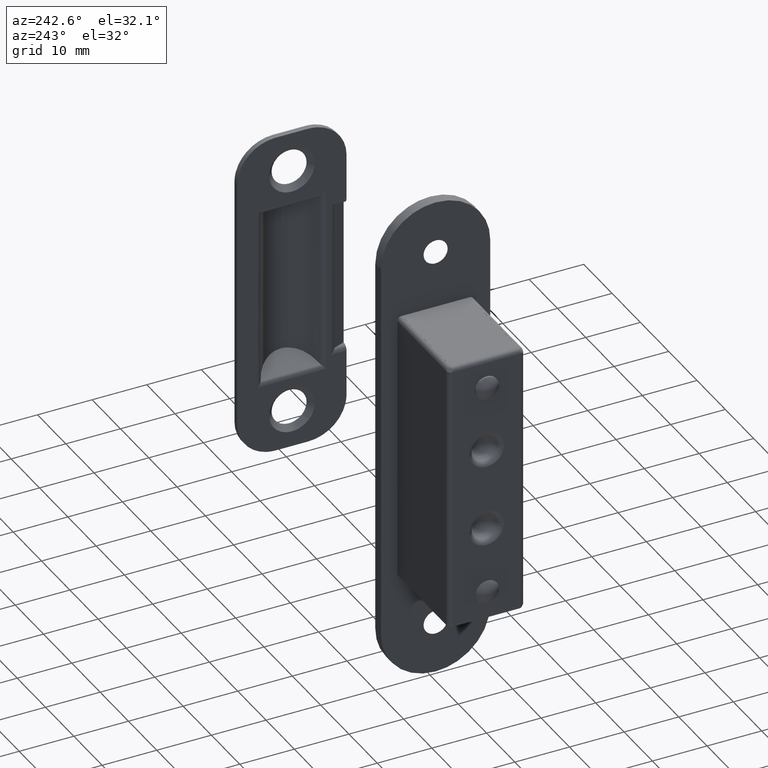
[diagram: clean part render]
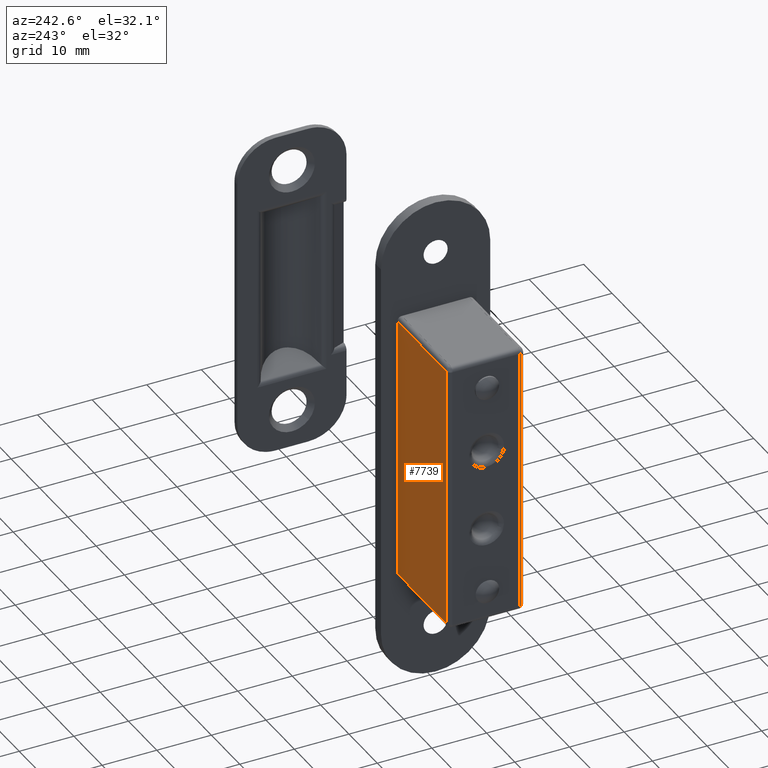
[diagram: same view with one face highlighted and labeled with its STEP entity id]
A machine part, auxiliary view. The second image highlights one B-rep face of the part: STEP entity #7739.
In plain terms, the highlighted face is a freeform B-spline surface patch.
Its self-contained STEP definition (entity closure, byte-faithful):
#7670=CARTESIAN_POINT('',(-19.199999999999999,6.999984999999900,-24.199999999999999));
#7671=VERTEX_POINT('',#7670);
#7672=CARTESIAN_POINT('',(-19.199999999999999,6.999984999999900,24.199999999999999));
#7673=VERTEX_POINT('',#7672);
#7674=CARTESIAN_POINT('',(-19.199999999999999,6.999984999999900,-24.199999999999999));
#7675=CARTESIAN_POINT('',(-19.199999999999999,6.999984999999900,24.199999999999999));
#7676=QUASI_UNIFORM_CURVE('',1,(#7674,#7675),.UNSPECIFIED.,.F.,.U.);
#7677=EDGE_CURVE('',#7671,#7673,#7676,.T.);
#7712=CARTESIAN_POINT('',(-20.059139966663061,6.999984999999900,26.617579906191409));
#7713=CARTESIAN_POINT('',(-1.140859571996988,6.999984999999900,26.617579906191409));
#7714=CARTESIAN_POINT('',(-20.059139966663061,6.999984999999900,-26.617581204380571));
#7715=CARTESIAN_POINT('',(-1.140859571996988,6.999984999999900,-26.617581204380571));
#7716=B_SPLINE_SURFACE_WITH_KNOTS('',1,1,((#7712,#7714),(#7713,#7715)),.UNSPECIFIED.,.F.,.F.,.U.,(2,2),(2,2),(0.0,18.918280394666080),(0.0,53.235161110571980),.UNSPECIFIED.);
#7717=CARTESIAN_POINT('',(-2.0,6.999984999999881,-24.199999999999999));
#7718=VERTEX_POINT('',#7717);
#7719=CARTESIAN_POINT('',(-2.0,6.999984999999881,24.199999999999999));
#7720=VERTEX_POINT('',#7719);
#7721=CARTESIAN_POINT('',(-2.0,6.999984999999881,-24.199999999999999));
#7722=CARTESIAN_POINT('',(-2.0,6.999984999999881,24.199999999999999));
#7723=QUASI_UNIFORM_CURVE('',1,(#7721,#7722),.UNSPECIFIED.,.F.,.U.);
#7724=EDGE_CURVE('',#7718,#7720,#7723,.T.);
#7725=ORIENTED_EDGE('',*,*,#7724,.F.);
#7726=CARTESIAN_POINT('',(-2.0,6.999984999999881,-24.199999999999999));
#7727=CARTESIAN_POINT('',(-19.199999999999999,6.999984999999900,-24.199999999999999));
#7728=QUASI_UNIFORM_CURVE('',1,(#7726,#7727),.UNSPECIFIED.,.F.,.U.);
#7729=EDGE_CURVE('',#7718,#7671,#7728,.T.);
#7730=ORIENTED_EDGE('',*,*,#7729,.T.);
#7731=ORIENTED_EDGE('',*,*,#7677,.T.);
#7732=CARTESIAN_POINT('',(-19.199999999999999,6.999984999999900,24.199999999999999));
#7733=CARTESIAN_POINT('',(-2.0,6.999984999999881,24.199999999999999));
#7734=QUASI_UNIFORM_CURVE('',1,(#7732,#7733),.UNSPECIFIED.,.F.,.U.);
#7735=EDGE_CURVE('',#7673,#7720,#7734,.T.);
#7736=ORIENTED_EDGE('',*,*,#7735,.T.);
#7737=EDGE_LOOP('',(#7725,#7730,#7731,#7736));
#7738=FACE_OUTER_BOUND('',#7737,.T.);
#7739=ADVANCED_FACE('',(#7738),#7716,.T.);